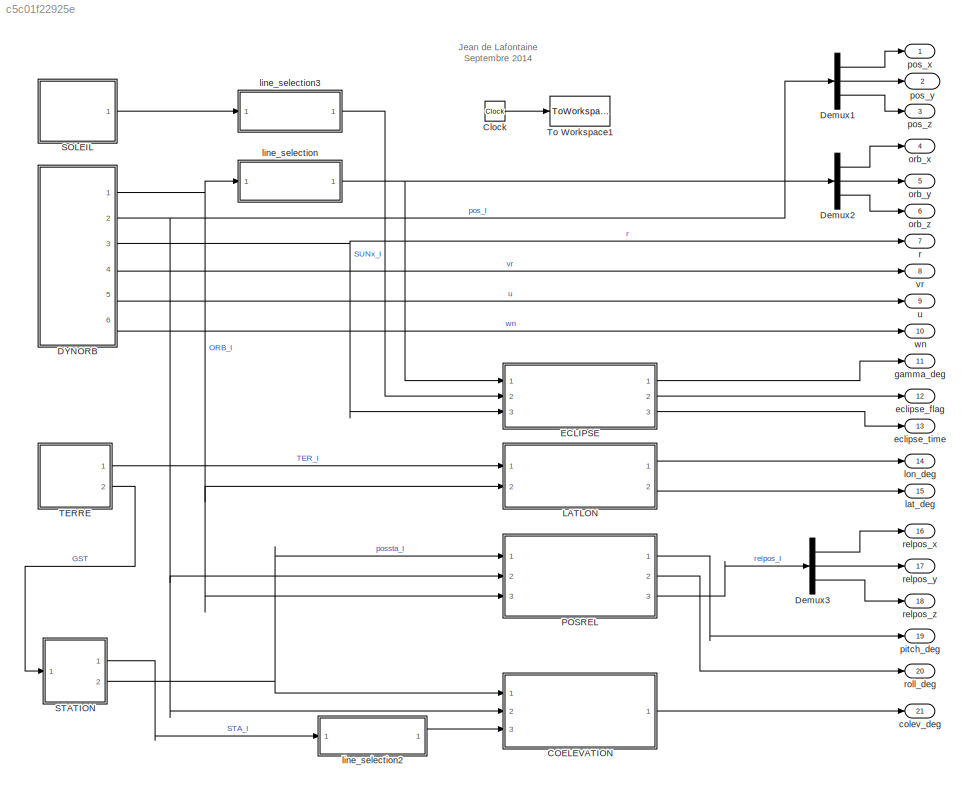
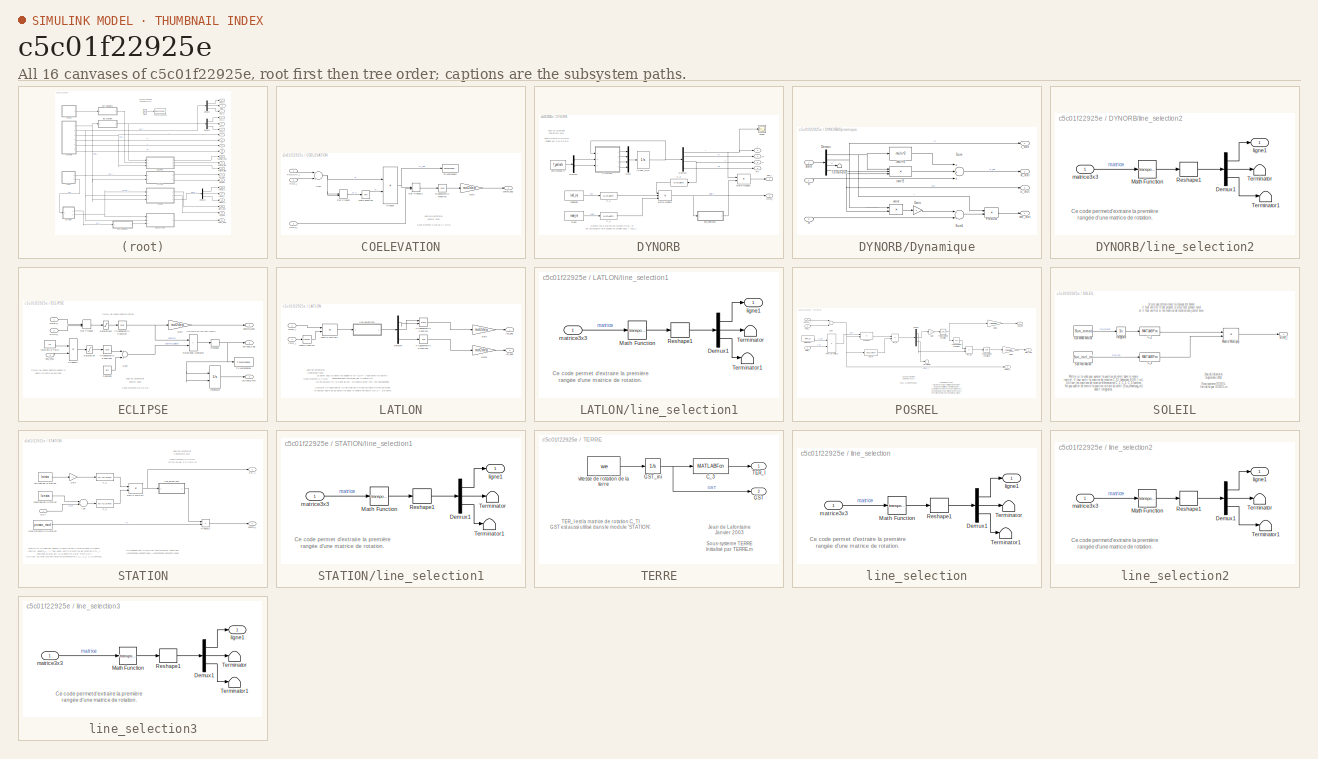
[diagram: thumbnail index - all 16 canvases of the model, root first then tree order]
MODEL slx_c5c01f22925e
KIND model
BLOCK [SubSystem] COELEVATION
  FunctionWithSeparateData = off
  MaskHideContents = off
  MinAlgLoopOccurrences = off
  Opaque = off
  Ports = [3, 1]
  PropExecContextOutsideSubsystem = off
  RTWSystemCode = Auto
  RequestExecContextInheritance = off
BLOCK [DotProduct] COELEVATION/Dot Product
  OutDataTypeStr = Inherit: Inherit via internal rule
BLOCK [DotProduct] COELEVATION/Dot Product1
  OutDataTypeStr = Inherit: Inherit via internal rule
BLOCK [Gain] COELEVATION/Gain
  Gain = rad2deg
BLOCK [Inport] COELEVATION/LOCx_I
  IconDisplay = Port number
  Port = 3
BLOCK [Math] COELEVATION/Math Function
  Operator = sqrt
  Ports = [1, 1]
BLOCK [Inport] COELEVATION/POSSTA_I
  IconDisplay = Port number
BLOCK [Inport] COELEVATION/POS_I
  IconDisplay = Port number
  Port = 2
BLOCK [Product] COELEVATION/Product
  Inputs = */
  Ports = [2, 1]
  RndMeth = Floor
BLOCK [Sum] COELEVATION/Sum
  Inputs = -+
  Ports = [2, 1]
BLOCK [ToWorkspace] COELEVATION/To Workspace
  MaxDataPoints = inf
  Ports = [1]
  SampleTime = -1
  VariableName = R_unit
BLOCK [Trigonometry] COELEVATION/Trigonometric Function
  Operator = acos
  Ports = [1, 1]
BLOCK [Outport] COELEVATION/coelev_deg
  IconDisplay = Port number
BLOCK [Clock] Clock
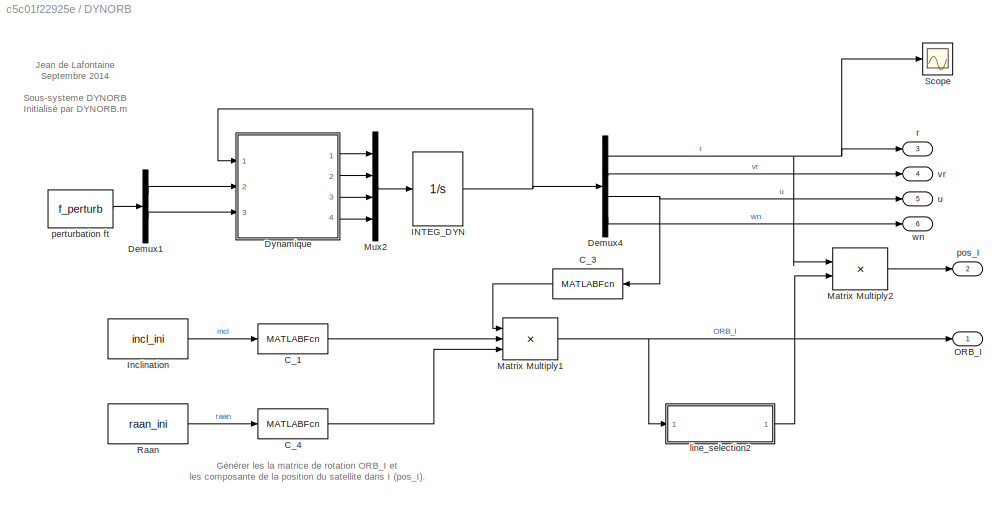
BLOCK [SubSystem] DYNORB
  FunctionWithSeparateData = off
  MaskHideContents = off
  MinAlgLoopOccurrences = off
  Opaque = off
  Ports = [0, 6]
  PropExecContextOutsideSubsystem = off
  RTWSystemCode = Auto
  RequestExecContextInheritance = off
BLOCK [MATLABFcn] DYNORB/C_1
  MATLABFcn = C_1
  Output1D = off
  Ports = [1, 1]
BLOCK [MATLABFcn] DYNORB/C_3
  MATLABFcn = C_3
  Output1D = off
  Ports = [1, 1]
BLOCK [MATLABFcn] DYNORB/C_4
  MATLABFcn = C_3
  Output1D = off
  Ports = [1, 1]
BLOCK [Demux] DYNORB/Demux1
  Outputs = 2
  Ports = [1, 2]
BLOCK [Demux] DYNORB/Demux4
  Ports = [1, 4]
BLOCK [SubSystem] DYNORB/Dynamique
  FunctionWithSeparateData = off
  MaskHideContents = off
  MinAlgLoopOccurrences = off
  Opaque = off
  Ports = [3, 4]
  PropExecContextOutsideSubsystem = off
  RTWSystemCode = Auto
  RequestExecContextInheritance = off
BLOCK [Fcn] DYNORB/Dynamique/-mu//r^2
  Expr = -mu/u^2
BLOCK [Demux] DYNORB/Dynamique/Demux
  Ports = [1, 4]
BLOCK [Gain] DYNORB/Dynamique/Gain
  Gain = 2
BLOCK [Product] DYNORB/Dynamique/Product
  Inputs = /*
  Ports = [2, 1]
  RndMeth = Floor
BLOCK [Sum] DYNORB/Dynamique/Sum
  Inputs = +++
  Ports = [3, 1]
BLOCK [Sum] DYNORB/Dynamique/Sum1
  Inputs = -+
  Ports = [2, 1]
BLOCK [Terminator] DYNORB/Dynamique/Terminator
BLOCK [Inport] DYNORB/Dynamique/fr
  IconDisplay = Port number
  Port = 2
BLOCK [Inport] DYNORB/Dynamique/ft
  IconDisplay = Port number
  Port = 3
BLOCK [Outport] DYNORB/Dynamique/r_dot
  IconDisplay = Port number
BLOCK [Product] DYNORB/Dynamique/rwn^2
  Inputs = 3
  Ports = [3, 1]
  RndMeth = Floor
BLOCK [Inport] DYNORB/Dynamique/state
  IconDisplay = Port number
BLOCK [Outport] DYNORB/Dynamique/u_dot
  IconDisplay = Port number
  Port = 3
BLOCK [Outport] DYNORB/Dynamique/vr_dot
  IconDisplay = Port number
  Port = 2
BLOCK [Outport] DYNORB/Dynamique/wn_dot
  IconDisplay = Port number
  Port = 4
BLOCK [Product] DYNORB/Dynamique/wnvr
  Ports = [2, 1]
  RndMeth = Floor
BLOCK [Integrator] DYNORB/INTEG_DYN
  InitialCondition = orb_ini
  Ports = [1, 1]
BLOCK [Constant] DYNORB/Inclination
  Value = incl_ini
BLOCK [Product] DYNORB/Matrix Multiply1
  InputSameDT = off
  Inputs = 3
  Multiplication = Matrix(*)
  OutDataTypeStr = Inherit: Inherit via internal rule
  Ports = [3, 1]
  RndMeth = Floor
  SaturateOnIntegerOverflow = off
BLOCK [Product] DYNORB/Matrix Multiply2
  InputSameDT = off
  OutDataTypeStr = Inherit: Inherit via internal rule
  Ports = [2, 1]
  RndMeth = Floor
  SaturateOnIntegerOverflow = off
BLOCK [Mux] DYNORB/Mux2
  DisplayOption = bar
  Ports = [4, 1]
BLOCK [Outport] DYNORB/ORB_I
  IconDisplay = Port number
BLOCK [Constant] DYNORB/Raan
  Value = raan_ini
BLOCK [Scope] DYNORB/Scope
  DataFormat = StructureWithTime
  Floating = off
  NumInputPorts = 1
  Ports = [1]
  SampleTime = 0
  ShowLegends = off
  ZoomMode = xonly
BLOCK [SubSystem] DYNORB/line_selection2
  FunctionWithSeparateData = off
  MaskHideContents = off
  MinAlgLoopOccurrences = off
  Opaque = off
  Ports = [1, 1]
  PropExecContextOutsideSubsystem = off
  RTWSystemCode = Auto
  RequestExecContextInheritance = off
BLOCK [Demux] DYNORB/line_selection2/Demux1
  Outputs = [3,3,3]
  Ports = [1, 3]
BLOCK [Math] DYNORB/line_selection2/Math Function
  Operator = transpose
  Ports = [1, 1]
BLOCK [Reshape] DYNORB/line_selection2/Reshape1
  Ports = [1, 1]
BLOCK [Terminator] DYNORB/line_selection2/Terminator
BLOCK [Terminator] DYNORB/line_selection2/Terminator1
BLOCK [Outport] DYNORB/line_selection2/ligne1
  IconDisplay = Port number
BLOCK [Inport] DYNORB/line_selection2/matrice3x3
  IconDisplay = Port number
BLOCK [Constant] DYNORB/perturbation ft
  Value = f_perturb
BLOCK [Outport] DYNORB/pos_I
  IconDisplay = Port number
  Port = 2
BLOCK [Outport] DYNORB/r
  IconDisplay = Port number
  Port = 3
BLOCK [Outport] DYNORB/u
  IconDisplay = Port number
  Port = 5
BLOCK [Outport] DYNORB/vr
  IconDisplay = Port number
  Port = 4
BLOCK [Outport] DYNORB/wn
  IconDisplay = Port number
  Port = 6
BLOCK [Demux] Demux1
  Outputs = 3
  Ports = [1, 3]
BLOCK [Demux] Demux2
  Outputs = 3
  Ports = [1, 3]
BLOCK [Demux] Demux3
  Outputs = 3
  Ports = [1, 3]
BLOCK [SubSystem] ECLIPSE
  FunctionWithSeparateData = off
  MaskHideContents = off
  MinAlgLoopOccurrences = off
  Opaque = off
  Ports = [3, 3]
  PropExecContextOutsideSubsystem = off
  RTWSystemCode = Auto
  RequestExecContextInheritance = off
BLOCK [Constant] ECLIPSE/Constant
  Value = pi/2
BLOCK [DotProduct] ECLIPSE/Dot Product
  OutDataTypeStr = Inherit: Inherit via internal rule
BLOCK [Gain] ECLIPSE/Gain
  Gain = rad2deg
BLOCK [Integrator] ECLIPSE/Integrator
  ExternalReset = either
  Ports = [2, 1]
BLOCK [Inport] ECLIPSE/ORBx_I
  IconDisplay = Port number
BLOCK [Product] ECLIPSE/Product2
  Inputs = */
  Ports = [2, 1]
  RndMeth = Floor
BLOCK [RelationalOperator] ECLIPSE/Relational Operator
  Operator = >
  OutDataTypeStr = 'double'
  Ports = [2, 1]
BLOCK [Reshape] ECLIPSE/Reshape
  Ports = [1, 1]
BLOCK [Inport] ECLIPSE/SUNx_I
  IconDisplay = Port number
  Port = 2
BLOCK [Saturate] ECLIPSE/Saturation
  InputPortMap = u0
  LowerLimit = -1
  Ports = [1, 1]
  UpperLimit = 1
BLOCK [Saturate] ECLIPSE/Saturation1
  InputPortMap = u0
  LowerLimit = -1
  Ports = [1, 1]
  UpperLimit = 1
BLOCK [Sum] ECLIPSE/Sum
  Ports = [2, 1]
BLOCK [ToWorkspace] ECLIPSE/To Workspace1
  MaxDataPoints = inf
  Ports = [1]
  SampleTime = -1
  VariableName = eclipse_flg
BLOCK [Trigonometry] ECLIPSE/Trigonometric Function
  Operator = acos
  Ports = [1, 1]
BLOCK [Trigonometry] ECLIPSE/Trigonometric Function1
  Operator = acos
  Ports = [1, 1]
BLOCK [Outport] ECLIPSE/eclipse_flag
  IconDisplay = Port number
  Port = 2
BLOCK [Outport] ECLIPSE/eclipse_time
  IconDisplay = Port number
  Port = 3
BLOCK [Outport] ECLIPSE/gamma_deg
  IconDisplay = Port number
BLOCK [Inport] ECLIPSE/pos_mod
  IconDisplay = Port number
  Port = 3
BLOCK [Constant] ECLIPSE/rayon de la Terre
  Value = re
  VectorParams1D = off
BLOCK [SubSystem] LATLON
  FunctionWithSeparateData = off
  MaskHideContents = off
  MinAlgLoopOccurrences = off
  Opaque = off
  Ports = [2, 2]
  PropExecContextOutsideSubsystem = off
  RTWSystemCode = Auto
  RequestExecContextInheritance = off
BLOCK [Demux] LATLON/Demux4
  Outputs = 3
  Ports = [1, 3]
BLOCK [Gain] LATLON/Gain
  Gain = rad2deg
BLOCK [Gain] LATLON/Gain1
  Gain = rad2deg
BLOCK [Math] LATLON/Math Function
  Operator = transpose
  Ports = [1, 1]
BLOCK [Product] LATLON/Matrix Multiply
  InputSameDT = off
  Multiplication = Matrix(*)
  OutDataTypeStr = Inherit: Inherit via internal rule
  Ports = [2, 1]
  RndMeth = Floor
  SaturateOnIntegerOverflow = off
BLOCK [Inport] LATLON/ORB_I
  IconDisplay = Port number
  Port = 2
BLOCK [Inport] LATLON/TER_I
  IconDisplay = Port number
BLOCK [Trigonometry] LATLON/Trigonometric Function
  Operator = atan2
  Ports = [2, 1]
BLOCK [Trigonometry] LATLON/Trigonometric Function1
  Operator = asin
  Ports = [1, 1]
BLOCK [Outport] LATLON/lat_deg
  IconDisplay = Port number
  Port = 2
BLOCK [SubSystem] LATLON/line_selection1
  FunctionWithSeparateData = off
  MaskHideContents = off
  MinAlgLoopOccurrences = off
  Opaque = off
  Ports = [1, 1]
  PropExecContextOutsideSubsystem = off
  RTWSystemCode = Auto
  RequestExecContextInheritance = off
BLOCK [Demux] LATLON/line_selection1/Demux1
  Outputs = [3,3,3]
  Ports = [1, 3]
BLOCK [Math] LATLON/line_selection1/Math Function
  Operator = transpose
  Ports = [1, 1]
BLOCK [Reshape] LATLON/line_selection1/Reshape1
  Ports = [1, 1]
BLOCK [Terminator] LATLON/line_selection1/Terminator
BLOCK [Terminator] LATLON/line_selection1/Terminator1
BLOCK [Outport] LATLON/line_selection1/ligne1
  IconDisplay = Port number
BLOCK [Inport] LATLON/line_selection1/matrice3x3
  IconDisplay = Port number
BLOCK [Outport] LATLON/lon_deg
  IconDisplay = Port number
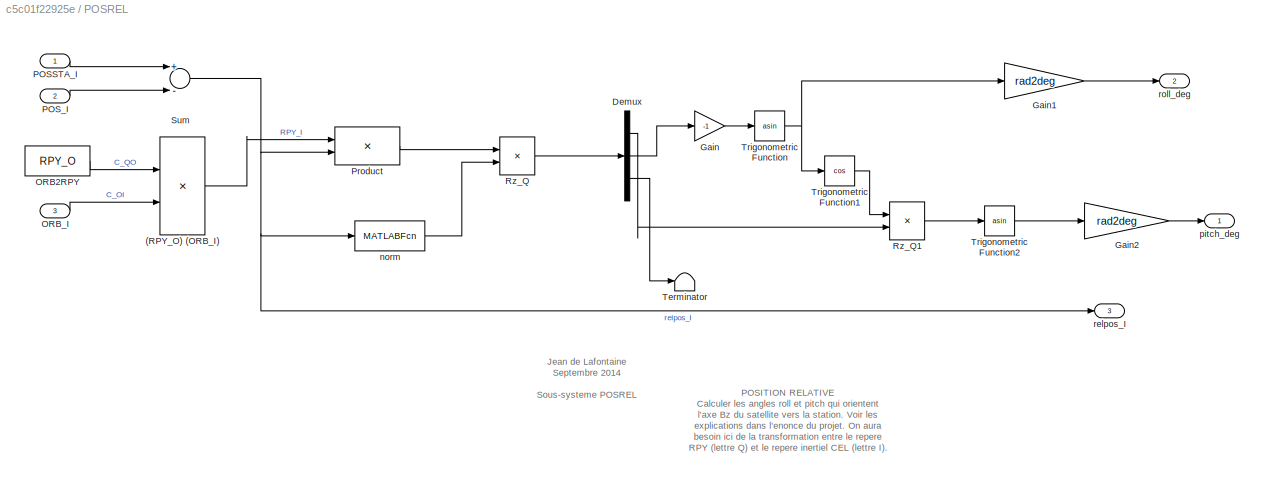
BLOCK [SubSystem] POSREL
  FunctionWithSeparateData = off
  MaskHideContents = off
  MinAlgLoopOccurrences = off
  Opaque = off
  Ports = [3, 3]
  PropExecContextOutsideSubsystem = off
  RTWSystemCode = Auto
  RequestExecContextInheritance = off
BLOCK [Product] POSREL/(RPY_O) (ORB_I)
  Multiplication = Matrix(*)
  Ports = [2, 1]
  RndMeth = Floor
BLOCK [Demux] POSREL/Demux
  DisplayOption = bar
  Outputs = 3
  Ports = [1, 3]
BLOCK [Gain] POSREL/Gain
  Gain = -1
  OutDataTypeStr = Inherit: Inherit via internal rule
  ParamDataTypeStr = Inherit: Inherit via internal rule
  SaturateOnIntegerOverflow = off
BLOCK [Gain] POSREL/Gain1
  Gain = rad2deg
BLOCK [Gain] POSREL/Gain2
  Gain = rad2deg
BLOCK [Constant] POSREL/ORB2RPY
  Value = RPY_O
BLOCK [Inport] POSREL/ORB_I
  IconDisplay = Port number
  Port = 3
BLOCK [Inport] POSREL/POSSTA_I
  IconDisplay = Port number
BLOCK [Inport] POSREL/POS_I
  IconDisplay = Port number
  Port = 2
BLOCK [Product] POSREL/Product
  InputSameDT = off
  Multiplication = Matrix(*)
  OutDataTypeStr = Inherit: Inherit via internal rule
  Ports = [2, 1]
  RndMeth = Floor
  SaturateOnIntegerOverflow = off
BLOCK [Product] POSREL/Rz_Q
  Inputs = */
  Ports = [2, 1]
  RndMeth = Floor
BLOCK [Product] POSREL/Rz_Q1
  Inputs = /*
  Ports = [2, 1]
  RndMeth = Floor
BLOCK [Sum] POSREL/Sum
  Inputs = +-
  Ports = [2, 1]
BLOCK [Terminator] POSREL/Terminator
BLOCK [Trigonometry] POSREL/Trigonometric Function
  Operator = asin
  Ports = [1, 1]
BLOCK [Trigonometry] POSREL/Trigonometric Function1
  Operator = cos
  Ports = [1, 1]
BLOCK [Trigonometry] POSREL/Trigonometric Function2
  Operator = asin
  Ports = [1, 1]
BLOCK [MATLABFcn] POSREL/norm
  MATLABFcn = norm(u)
  Output1D = off
  Ports = [1, 1]
BLOCK [Outport] POSREL/pitch_deg
  IconDisplay = Port number
BLOCK [Outport] POSREL/relpos_I
  IconDisplay = Port number
  Port = 3
BLOCK [Outport] POSREL/roll_deg
  IconDisplay = Port number
  Port = 2
BLOCK [SubSystem] SOLEIL
  FunctionWithSeparateData = off
  MaskHideContents = off
  MinAlgLoopOccurrences = off
  Opaque = off
  Ports = [0, 1]
  PropExecContextOutsideSubsystem = off
  RTWSystemCode = Auto
  RequestExecContextInheritance = off
BLOCK [MATLABFcn] SOLEIL/C_2
  MATLABFcn = C_1
  Output1D = off
  Ports = [1, 1]
BLOCK [MATLABFcn] SOLEIL/C_3
  MATLABFcn = C_3
  Output1D = off
  Ports = [1, 1]
BLOCK [Integrator] SOLEIL/Integrator
  InitialCondition = Sun_meanlong_ini
  Ports = [1, 1]
BLOCK [Product] SOLEIL/Matrix Multiply
  InputSameDT = off
  Multiplication = Matrix(*)
  OutDataTypeStr = Inherit: Inherit via internal rule
  Ports = [2, 1]
  RndMeth = Floor
  SaturateOnIntegerOverflow = off
BLOCK [Outport] SOLEIL/SUN_I
  IconDisplay = Port number
BLOCK [Constant] SOLEIL/Sun Inclination
  Value = Sun_incl_ini
BLOCK [Constant] SOLEIL/Sun Mean Motion
  Value = Sun_mmot
BLOCK [SubSystem] STATION
  FunctionWithSeparateData = off
  MaskHideContents = off
  MinAlgLoopOccurrences = off
  Opaque = off
  Ports = [1, 2]
  PropExecContextOutsideSubsystem = off
  RTWSystemCode = Auto
  RequestExecContextInheritance = off
BLOCK [Sum] STATION/Add
  InputSameDT = off
  OutDataTypeStr = Inherit: Inherit via internal rule
  Ports = [2, 1]
  SaturateOnIntegerOverflow = off
BLOCK [MATLABFcn] STATION/C_1
  MATLABFcn = C_2
  Output1D = off
  Ports = [1, 1]
BLOCK [MATLABFcn] STATION/C_2
  MATLABFcn = C_3
  Output1D = off
  Ports = [1, 1]
BLOCK [Inport] STATION/GST
  IconDisplay = Port number
BLOCK [Gain] STATION/Gain
  Gain = -1
  OutDataTypeStr = Inherit: Inherit via internal rule
  ParamDataTypeStr = Inherit: Inherit via internal rule
  SaturateOnIntegerOverflow = off
BLOCK [Product] STATION/Matrix Multiply
  InputSameDT = off
  Multiplication = Matrix(*)
  OutDataTypeStr = Inherit: Inherit via internal rule
  Ports = [2, 1]
  RndMeth = Floor
  SaturateOnIntegerOverflow = off
BLOCK [Product] STATION/Product2
  InputSameDT = off
  Multiplication = Matrix(*)
  OutDataTypeStr = Inherit: Inherit via internal rule
  Ports = [2, 1]
  RndMeth = Floor
  SaturateOnIntegerOverflow = off
BLOCK [Outport] STATION/STA_I
  IconDisplay = Port number
BLOCK [Constant] STATION/latitude de la station
  Value = latsta
  VectorParams1D = off
BLOCK [SubSystem] STATION/line_selection1
  FunctionWithSeparateData = off
  MaskHideContents = off
  MinAlgLoopOccurrences = off
  Opaque = off
  Ports = [1, 1]
  PropExecContextOutsideSubsystem = off
  RTWSystemCode = Auto
  RequestExecContextInheritance = off
BLOCK [Demux] STATION/line_selection1/Demux1
  Outputs = [3,3,3]
  Ports = [1, 3]
BLOCK [Math] STATION/line_selection1/Math Function
  Operator = transpose
  Ports = [1, 1]
BLOCK [Reshape] STATION/line_selection1/Reshape1
  Ports = [1, 1]
BLOCK [Terminator] STATION/line_selection1/Terminator
BLOCK [Terminator] STATION/line_selection1/Terminator1
BLOCK [Outport] STATION/line_selection1/ligne1
  IconDisplay = Port number
BLOCK [Inport] STATION/line_selection1/matrice3x3
  IconDisplay = Port number
BLOCK [Constant] STATION/longitude de la station
  Value = lonsta
  VectorParams1D = off
BLOCK [Outport] STATION/possta_I
  IconDisplay = Port number
  Port = 2
BLOCK [Constant] STATION/rayon terrestre à la station
  Value = possta_mod
  VectorParams1D = off
BLOCK [SubSystem] TERRE
  FunctionWithSeparateData = off
  MaskHideContents = off
  MinAlgLoopOccurrences = off
  Opaque = off
  Ports = [0, 2]
  PropExecContextOutsideSubsystem = off
  RTWSystemCode = Auto
  RequestExecContextInheritance = off
BLOCK [MATLABFcn] TERRE/C_3
  MATLABFcn = C_3
  Output1D = off
  Ports = [1, 1]
BLOCK [Outport] TERRE/GST
  IconDisplay = Port number
  Port = 2
BLOCK [Integrator] TERRE/GST_ini
  InitialCondition = GST_ini
  Ports = [1, 1]
BLOCK [Outport] TERRE/TER_I
  IconDisplay = Port number
BLOCK [Constant] TERRE/vitesse de rotation de la terre
  Value = we
BLOCK [ToWorkspace] To Workspace1
  MaxDataPoints = inf
  Ports = [1]
  SampleTime = -1
  VariableName = tsim
BLOCK [Outport] colev_deg
  IconDisplay = Port number
  Port = 21
BLOCK [Outport] eclipse_flag
  IconDisplay = Port number
  Port = 12
BLOCK [Outport] eclipse_time
  IconDisplay = Port number
  Port = 13
BLOCK [Outport] gamma_deg
  IconDisplay = Port number
  Port = 11
BLOCK [Outport] lat_deg
  IconDisplay = Port number
  Port = 15
BLOCK [SubSystem] line_selection
  FunctionWithSeparateData = off
  MaskHideContents = off
  MinAlgLoopOccurrences = off
  Opaque = off
  Ports = [1, 1]
  PropExecContextOutsideSubsystem = off
  RTWSystemCode = Auto
  RequestExecContextInheritance = off
BLOCK [Demux] line_selection/Demux1
  Outputs = [3,3,3]
  Ports = [1, 3]
BLOCK [Math] line_selection/Math Function
  Operator = transpose
  Ports = [1, 1]
BLOCK [Reshape] line_selection/Reshape1
  Ports = [1, 1]
BLOCK [Terminator] line_selection/Terminator
BLOCK [Terminator] line_selection/Terminator1
BLOCK [Outport] line_selection/ligne1
  IconDisplay = Port number
BLOCK [Inport] line_selection/matrice3x3
  IconDisplay = Port number
BLOCK [SubSystem] line_selection2
  FunctionWithSeparateData = off
  MaskHideContents = off
  MinAlgLoopOccurrences = off
  Opaque = off
  Ports = [1, 1]
  PropExecContextOutsideSubsystem = off
  RTWSystemCode = Auto
  RequestExecContextInheritance = off
BLOCK [Demux] line_selection2/Demux1
  Outputs = [3,3,3]
  Ports = [1, 3]
BLOCK [Math] line_selection2/Math Function
  Operator = transpose
  Ports = [1, 1]
BLOCK [Reshape] line_selection2/Reshape1
  Ports = [1, 1]
BLOCK [Terminator] line_selection2/Terminator
BLOCK [Terminator] line_selection2/Terminator1
BLOCK [Outport] line_selection2/ligne1
  IconDisplay = Port number
BLOCK [Inport] line_selection2/matrice3x3
  IconDisplay = Port number
BLOCK [SubSystem] line_selection3
  FunctionWithSeparateData = off
  MaskHideContents = off
  MinAlgLoopOccurrences = off
  Opaque = off
  Ports = [1, 1]
  PropExecContextOutsideSubsystem = off
  RTWSystemCode = Auto
  RequestExecContextInheritance = off
BLOCK [Demux] line_selection3/Demux1
  Outputs = [3,3,3]
  Ports = [1, 3]
BLOCK [Math] line_selection3/Math Function
  Operator = transpose
  Ports = [1, 1]
BLOCK [Reshape] line_selection3/Reshape1
  Ports = [1, 1]
BLOCK [Terminator] line_selection3/Terminator
BLOCK [Terminator] line_selection3/Terminator1
BLOCK [Outport] line_selection3/ligne1
  IconDisplay = Port number
BLOCK [Inport] line_selection3/matrice3x3
  IconDisplay = Port number
BLOCK [Outport] lon_deg
  IconDisplay = Port number
  Port = 14
BLOCK [Outport] orb_x
  IconDisplay = Port number
  Port = 4
BLOCK [Outport] orb_y
  IconDisplay = Port number
  Port = 5
BLOCK [Outport] orb_z
  IconDisplay = Port number
  Port = 6
BLOCK [Outport] pitch_deg
  IconDisplay = Port number
  Port = 19
BLOCK [Outport] pos_x
  IconDisplay = Port number
BLOCK [Outport] pos_y
  IconDisplay = Port number
  Port = 2
BLOCK [Outport] pos_z
  IconDisplay = Port number
  Port = 3
BLOCK [Outport] r
  IconDisplay = Port number
  Port = 7
BLOCK [Outport] relpos_x
  IconDisplay = Port number
  Port = 16
BLOCK [Outport] relpos_y
  IconDisplay = Port number
  Port = 17
BLOCK [Outport] relpos_z
  IconDisplay = Port number
  Port = 18
BLOCK [Outport] roll_deg
  IconDisplay = Port number
  Port = 20
BLOCK [Outport] u
  IconDisplay = Port number
  Port = 9
BLOCK [Outport] vr
  IconDisplay = Port number
  Port = 8
BLOCK [Outport] wn
  IconDisplay = Port number
  Port = 10
ANNOTATION (root): Jean de Lafontaine Septembre 2014
ANNOTATION COELEVATION: Jean de Lafontaine Janvier 2003 Sous-systeme COELEVATION
ANNOTATION DYNORB: Générer les la matrice de rotation ORB_I et les composante de la position du satellite dans I (pos_I).
ANNOTATION DYNORB: Jean de Lafontaine Septembre 2014 Sous-systeme DYNORB Initialisé par DYNORB.m
ANNOTATION DYNORB/line_selection2: Ce code permet d'extraire la première rangée d'une matrice de rotation.
ANNOTATION ECLIPSE: Calcul de l'angle gamma actuel
ANNOTATION ECLIPSE: Calcul de l'angle gamma quand le satellite entre en eclipse
ANNOTATION ECLIPSE: Comparaison des deux angles
ANNOTATION ECLIPSE: Jean de Lafontaine Janvier 2003 Sous-systeme ECLIPSE
ANNOTATION LATLON: Jean de Lafontaine Septembre 2014 Sous-systeme LATLON
ANNOTATION LATLON: Le point sous le satellite s'appelle le "SSP" ("sub-satellite point"). On en calcule ici la trace au sol. On pourra ainsi voir les coordonnees geographiques survolees par le satellite. Calculer la longitude et la latitude de la trace du satellite en calculant le vecteur position du satellite dans le repere terrestre (Or_T). De cette position dans TER, on peut extraire la longitude (lon_deg) et la ...<+29ch>
ANNOTATION LATLON/line_selection1: Ce code permet d'extraire la première rangée d'une matrice de rotation.
ANNOTATION POSREL: Jean de Lafontaine Septembre 2014 Sous-systeme POSREL
ANNOTATION POSREL: POSITION RELATIVE Calculer les angles roll et pitch qui orientent l'axe Bz du satellite vers la station. Voir les explications dans l'enonce du projet. On aura besoin ici de la transformation entre le repere RPY (lettre Q) et le repere inertiel CEL (lettre I). Les sorties seront: (1) pitch_deg (2) roll_deg (3:5) relpos_I
ANNOTATION SOLEIL: Je suis pas certain mais la logique est bonne il faut verifier le dot product je crois cest produit noral et il faut verifier si les matrice de rotation son jumler bien
ANNOTATION SOLEIL: Jean de Lafontaine Septembre 2014 Sous-systeme SOLEIL Initialisé par SOLEIL.m
ANNOTATION SOLEIL: Mettre ici le code pour generer la position du soleil dans le repere inertiel. Il faut sortir la matrice de rotation C_SI (dénotées SUN_I ici). Utiliser les matrices de rotation élémentaires C_1, C_2, C_3 fournies. Ne pas oublier de mettre la position initiale du soleil (Sun_meanlong_ini) dans l'intégrateur.
ANNOTATION STATION: Jean de Lafontaine Septembre 2014 Sous-systeme STATION Initialisé par STATION.m
ANNOTATION STATION: Mettre ici le code qui genere la position de la station dans le repere inertiel (possta_I). Il faut aussi sortirla matrice de rotation STA_I. L'entreee au bloc est le Greenwich Solar Time GST. Utiliser les matrices de rotation élémentaires C_1, C_2, C_3 fournies.
ANNOTATION STATION: On suppose que la Terre est parfaitement spherique (coordonnees geodetiques = coordonnees geocentriques)
ANNOTATION STATION/line_selection1: Ce code permet d'extraire la première rangée d'une matrice de rotation.
ANNOTATION TERRE: Jean de Lafontaine Janvier 2003 Sous-systeme TERRE Initialisé par TERRE.m
ANNOTATION TERRE: TER_I est la matrice de rotation C_TI GST est aussi utilisé dans le module 'STATION'.
ANNOTATION line_selection: Ce code permet d'extraire la première rangée d'une matrice de rotation.
ANNOTATION line_selection2: Ce code permet d'extraire la première rangée d'une matrice de rotation.
ANNOTATION line_selection3: Ce code permet d'extraire la première rangée d'une matrice de rotation.
LINE COELEVATION/Dot Product1:1 -> COELEVATION/Trigonometric Function:1
LINE COELEVATION/Dot Product:1 -> COELEVATION/Math Function:1
LINE COELEVATION/Gain:1 -> COELEVATION/coelev_deg:1
LINE COELEVATION/LOCx_I:1 -> COELEVATION/Dot Product1:2
LINE COELEVATION/Math Function:1 -> COELEVATION/Product:2
LINE COELEVATION/POSSTA_I:1 -> COELEVATION/Sum:1
LINE COELEVATION/POS_I:1 -> COELEVATION/Sum:2
NET COELEVATION/Product:1 -> COELEVATION/Dot Product1:1, COELEVATION/To Workspace:1
NET COELEVATION/Sum:1 -> COELEVATION/Dot Product:1, COELEVATION/Dot Product:2, COELEVATION/Product:1
LINE COELEVATION/Trigonometric Function:1 -> COELEVATION/Gain:1
LINE COELEVATION:1 -> colev_deg:1
LINE Clock:1 -> To Workspace1:1
LINE DYNORB/C_1:1 -> DYNORB/Matrix Multiply1:2
LINE DYNORB/C_3:1 -> DYNORB/Matrix Multiply1:1
LINE DYNORB/C_4:1 -> DYNORB/Matrix Multiply1:3
LINE DYNORB/Demux1:1 -> DYNORB/Dynamique:2
LINE DYNORB/Demux1:2 -> DYNORB/Dynamique:3
NET DYNORB/Demux4:1 -> DYNORB/Matrix Multiply2:1, DYNORB/Scope:1, DYNORB/r:1
LINE DYNORB/Demux4:2 -> DYNORB/vr:1
NET DYNORB/Demux4:3 -> DYNORB/C_3:1, DYNORB/u:1
LINE DYNORB/Demux4:4 -> DYNORB/wn:1
LINE DYNORB/Dynamique/-mu//r^2:1 -> DYNORB/Dynamique/Sum:1
NET DYNORB/Dynamique/Demux:1 -> DYNORB/Dynamique/-mu//r^2:1, DYNORB/Dynamique/Product:1, DYNORB/Dynamique/rwn^2:1
NET DYNORB/Dynamique/Demux:2 -> DYNORB/Dynamique/r_dot:1, DYNORB/Dynamique/wnvr:1
LINE DYNORB/Dynamique/Demux:3 -> DYNORB/Dynamique/Terminator:1
NET DYNORB/Dynamique/Demux:4 -> DYNORB/Dynamique/rwn^2:2, DYNORB/Dynamique/rwn^2:3, DYNORB/Dynamique/u_dot:1, DYNORB/Dynamique/wnvr:2
LINE DYNORB/Dynamique/Gain:1 -> DYNORB/Dynamique/Sum1:1
LINE DYNORB/Dynamique/Product:1 -> DYNORB/Dynamique/wn_dot:1
LINE DYNORB/Dynamique/Sum1:1 -> DYNORB/Dynamique/Product:2
LINE DYNORB/Dynamique/Sum:1 -> DYNORB/Dynamique/vr_dot:1
LINE DYNORB/Dynamique/fr:1 -> DYNORB/Dynamique/Sum:3
LINE DYNORB/Dynamique/ft:1 -> DYNORB/Dynamique/Sum1:2
LINE DYNORB/Dynamique/rwn^2:1 -> DYNORB/Dynamique/Sum:2
LINE DYNORB/Dynamique/state:1 -> DYNORB/Dynamique/Demux:1
LINE DYNORB/Dynamique/wnvr:1 -> DYNORB/Dynamique/Gain:1
LINE DYNORB/Dynamique:1 -> DYNORB/Mux2:1
LINE DYNORB/Dynamique:2 -> DYNORB/Mux2:2
LINE DYNORB/Dynamique:3 -> DYNORB/Mux2:3
LINE DYNORB/Dynamique:4 -> DYNORB/Mux2:4
NET DYNORB/INTEG_DYN:1 -> DYNORB/Demux4:1, DYNORB/Dynamique:1
LINE DYNORB/Inclination:1 -> DYNORB/C_1:1
NET DYNORB/Matrix Multiply1:1 -> DYNORB/ORB_I:1, DYNORB/line_selection2:1
LINE DYNORB/Matrix Multiply2:1 -> DYNORB/pos_I:1
LINE DYNORB/Mux2:1 -> DYNORB/INTEG_DYN:1
LINE DYNORB/Raan:1 -> DYNORB/C_4:1
LINE DYNORB/line_selection2/Demux1:1 -> DYNORB/line_selection2/ligne1:1
LINE DYNORB/line_selection2/Demux1:2 -> DYNORB/line_selection2/Terminator:1
LINE DYNORB/line_selection2/Demux1:3 -> DYNORB/line_selection2/Terminator1:1
LINE DYNORB/line_selection2/Math Function:1 -> DYNORB/line_selection2/Reshape1:1
LINE DYNORB/line_selection2/Reshape1:1 -> DYNORB/line_selection2/Demux1:1
LINE DYNORB/line_selection2/matrice3x3:1 -> DYNORB/line_selection2/Math Function:1
LINE DYNORB/line_selection2:1 -> DYNORB/Matrix Multiply2:2
LINE DYNORB/perturbation ft:1 -> DYNORB/Demux1:1
NET DYNORB:1 -> LATLON:2, POSREL:3, line_selection:1
NET DYNORB:2 -> COELEVATION:2, Demux1:1, POSREL:2
NET DYNORB:3 -> ECLIPSE:3, r:1
LINE DYNORB:4 -> vr:1
LINE DYNORB:5 -> u:1
LINE DYNORB:6 -> wn:1
LINE Demux1:1 -> pos_x:1
LINE Demux1:2 -> pos_y:1
LINE Demux1:3 -> pos_z:1
LINE Demux2:1 -> orb_x:1
LINE Demux2:2 -> orb_y:1
LINE Demux2:3 -> orb_z:1
LINE Demux3:1 -> relpos_x:1
LINE Demux3:2 -> relpos_y:1
LINE Demux3:3 -> relpos_z:1
LINE ECLIPSE/Constant:1 -> ECLIPSE/Sum:2
LINE ECLIPSE/Dot Product:1 -> ECLIPSE/Saturation1:1
LINE ECLIPSE/Gain:1 -> ECLIPSE/gamma_deg:1
LINE ECLIPSE/Integrator:1 -> ECLIPSE/eclipse_time:1
LINE ECLIPSE/ORBx_I:1 -> ECLIPSE/Dot Product:1
LINE ECLIPSE/Product2:1 -> ECLIPSE/Saturation:1
LINE ECLIPSE/Relational Operator:1 -> ECLIPSE/Reshape:1
NET ECLIPSE/Reshape:1 -> ECLIPSE/Integrator:1, ECLIPSE/Integrator:2, ECLIPSE/To Workspace1:1, ECLIPSE/eclipse_flag:1
LINE ECLIPSE/SUNx_I:1 -> ECLIPSE/Dot Product:2
LINE ECLIPSE/Saturation1:1 -> ECLIPSE/Trigonometric Function:1
LINE ECLIPSE/Saturation:1 -> ECLIPSE/Trigonometric Function1:1
LINE ECLIPSE/Sum:1 -> ECLIPSE/Relational Operator:2
LINE ECLIPSE/Trigonometric Function1:1 -> ECLIPSE/Sum:1
NET ECLIPSE/Trigonometric Function:1 -> ECLIPSE/Gain:1, ECLIPSE/Relational Operator:1
LINE ECLIPSE/pos_mod:1 -> ECLIPSE/Product2:2
LINE ECLIPSE/rayon de la Terre:1 -> ECLIPSE/Product2:1
LINE ECLIPSE:1 -> gamma_deg:1
LINE ECLIPSE:2 -> eclipse_flag:1
LINE ECLIPSE:3 -> eclipse_time:1
LINE LATLON/Demux4:1 -> LATLON/Trigonometric Function:2
LINE LATLON/Demux4:2 -> LATLON/Trigonometric Function:1
LINE LATLON/Demux4:3 -> LATLON/Trigonometric Function1:1
LINE LATLON/Gain1:1 -> LATLON/lat_deg:1
LINE LATLON/Gain:1 -> LATLON/lon_deg:1
LINE LATLON/Math Function:1 -> LATLON/Matrix Multiply:2
LINE LATLON/Matrix Multiply:1 -> LATLON/line_selection1:1
LINE LATLON/ORB_I:1 -> LATLON/Matrix Multiply:1
LINE LATLON/TER_I:1 -> LATLON/Math Function:1
LINE LATLON/Trigonometric Function1:1 -> LATLON/Gain1:1
LINE LATLON/Trigonometric Function:1 -> LATLON/Gain:1
LINE LATLON/line_selection1/Demux1:1 -> LATLON/line_selection1/ligne1:1
LINE LATLON/line_selection1/Demux1:2 -> LATLON/line_selection1/Terminator:1
LINE LATLON/line_selection1/Demux1:3 -> LATLON/line_selection1/Terminator1:1
LINE LATLON/line_selection1/Math Function:1 -> LATLON/line_selection1/Reshape1:1
LINE LATLON/line_selection1/Reshape1:1 -> LATLON/line_selection1/Demux1:1
LINE LATLON/line_selection1/matrice3x3:1 -> LATLON/line_selection1/Math Function:1
LINE LATLON/line_selection1:1 -> LATLON/Demux4:1
LINE LATLON:1 -> lon_deg:1
LINE LATLON:2 -> lat_deg:1
LINE POSREL/(RPY_O) (ORB_I):1 -> POSREL/Product:1
LINE POSREL/Demux:1 -> POSREL/Rz_Q1:2
LINE POSREL/Demux:2 -> POSREL/Gain:1
LINE POSREL/Demux:3 -> POSREL/Terminator:1
LINE POSREL/Gain1:1 -> POSREL/roll_deg:1
LINE POSREL/Gain2:1 -> POSREL/pitch_deg:1
LINE POSREL/Gain:1 -> POSREL/Trigonometric Function:1
LINE POSREL/ORB2RPY:1 -> POSREL/(RPY_O) (ORB_I):1
LINE POSREL/ORB_I:1 -> POSREL/(RPY_O) (ORB_I):2
LINE POSREL/POSSTA_I:1 -> POSREL/Sum:1
LINE POSREL/POS_I:1 -> POSREL/Sum:2
LINE POSREL/Product:1 -> POSREL/Rz_Q:1
LINE POSREL/Rz_Q1:1 -> POSREL/Trigonometric Function2:1
LINE POSREL/Rz_Q:1 -> POSREL/Demux:1
NET POSREL/Sum:1 -> POSREL/Product:2, POSREL/norm:1, POSREL/relpos_I:1
LINE POSREL/Trigonometric Function1:1 -> POSREL/Rz_Q1:1
LINE POSREL/Trigonometric Function2:1 -> POSREL/Gain2:1
NET POSREL/Trigonometric Function:1 -> POSREL/Gain1:1, POSREL/Trigonometric Function1:1
LINE POSREL/norm:1 -> POSREL/Rz_Q:2
LINE POSREL:1 -> pitch_deg:1
LINE POSREL:2 -> roll_deg:1
LINE POSREL:3 -> Demux3:1
LINE SOLEIL/C_2:1 -> SOLEIL/Matrix Multiply:1
LINE SOLEIL/C_3:1 -> SOLEIL/Matrix Multiply:2
LINE SOLEIL/Integrator:1 -> SOLEIL/C_2:1
LINE SOLEIL/Matrix Multiply:1 -> SOLEIL/SUN_I:1
LINE SOLEIL/Sun Inclination:1 -> SOLEIL/C_3:1
LINE SOLEIL/Sun Mean Motion:1 -> SOLEIL/Integrator:1
LINE SOLEIL:1 -> line_selection3:1
LINE STATION/Add:1 -> STATION/C_2:1
LINE STATION/C_1:1 -> STATION/Matrix Multiply:1
LINE STATION/C_2:1 -> STATION/Matrix Multiply:2
LINE STATION/GST:1 -> STATION/Add:2
LINE STATION/Gain:1 -> STATION/C_1:1
NET STATION/Matrix Multiply:1 -> STATION/STA_I:1, STATION/line_selection1:1
LINE STATION/Product2:1 -> STATION/possta_I:1
LINE STATION/latitude de la station:1 -> STATION/Gain:1
LINE STATION/line_selection1/Demux1:1 -> STATION/line_selection1/ligne1:1
LINE STATION/line_selection1/Demux1:2 -> STATION/line_selection1/Terminator:1
LINE STATION/line_selection1/Demux1:3 -> STATION/line_selection1/Terminator1:1
LINE STATION/line_selection1/Math Function:1 -> STATION/line_selection1/Reshape1:1
LINE STATION/line_selection1/Reshape1:1 -> STATION/line_selection1/Demux1:1
LINE STATION/line_selection1/matrice3x3:1 -> STATION/line_selection1/Math Function:1
LINE STATION/line_selection1:1 -> STATION/Product2:1
LINE STATION/longitude de la station:1 -> STATION/Add:1
LINE STATION/rayon terrestre à la station:1 -> STATION/Product2:2
LINE STATION:1 -> line_selection2:1
NET STATION:2 -> COELEVATION:1, POSREL:1
LINE TERRE/C_3:1 -> TERRE/TER_I:1
NET TERRE/GST_ini:1 -> TERRE/C_3:1, TERRE/GST:1
LINE TERRE/vitesse de rotation de la terre:1 -> TERRE/GST_ini:1
LINE TERRE:1 -> LATLON:1
LINE TERRE:2 -> STATION:1
LINE line_selection/Demux1:1 -> line_selection/ligne1:1
LINE line_selection/Demux1:2 -> line_selection/Terminator:1
LINE line_selection/Demux1:3 -> line_selection/Terminator1:1
LINE line_selection/Math Function:1 -> line_selection/Reshape1:1
LINE line_selection/Reshape1:1 -> line_selection/Demux1:1
LINE line_selection/matrice3x3:1 -> line_selection/Math Function:1
LINE line_selection2/Demux1:1 -> line_selection2/ligne1:1
LINE line_selection2/Demux1:2 -> line_selection2/Terminator:1
LINE line_selection2/Demux1:3 -> line_selection2/Terminator1:1
LINE line_selection2/Math Function:1 -> line_selection2/Reshape1:1
LINE line_selection2/Reshape1:1 -> line_selection2/Demux1:1
LINE line_selection2/matrice3x3:1 -> line_selection2/Math Function:1
LINE line_selection2:1 -> COELEVATION:3
LINE line_selection3/Demux1:1 -> line_selection3/ligne1:1
LINE line_selection3/Demux1:2 -> line_selection3/Terminator:1
LINE line_selection3/Demux1:3 -> line_selection3/Terminator1:1
LINE line_selection3/Math Function:1 -> line_selection3/Reshape1:1
LINE line_selection3/Reshape1:1 -> line_selection3/Demux1:1
LINE line_selection3/matrice3x3:1 -> line_selection3/Math Function:1
LINE line_selection3:1 -> ECLIPSE:2
NET line_selection:1 -> Demux2:1, ECLIPSE:1
note: NET lines group one-source signal fan-out (src -> all destinations, sorted); 1:1 wires keep LINE
